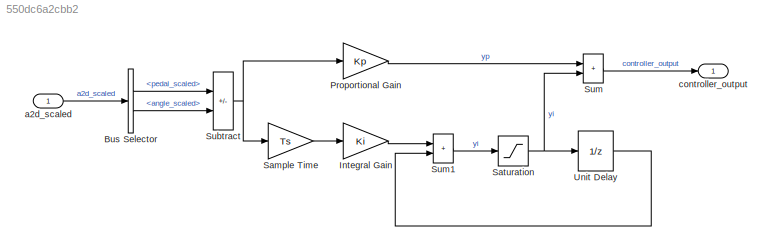
MODEL slx_550dc6a2cbb2
KIND model
CONFIG AbsTol = auto
CONFIG EnableMultiTasking = on
CONFIG FixedStep = Ts
CONFIG MaxStep = auto
CONFIG MinStep = auto
CONFIG RelTol = 1e-3
CONFIG SampleTimeConstraint = Unconstrained
CONFIG SolverName = FixedStepDiscrete
CONFIG StartTime = 0.0
CONFIG StopTime = 10.0
BLOCK [BusSelector] Bus Selector
  OutputSignals = pedal_scaled,angle_scaled
  Ports = [1, 2]
BLOCK [Gain] Integral Gain
  Gain = Ki
  OutDataTypeStr = Inherit: Same as input
  ParamDataTypeStr = Inherit: Same as input
  SaturateOnIntegerOverflow = on
BLOCK [Gain] Proportional Gain
  Gain = Kp
  OutDataTypeStr = Inherit: Same as input
  ParamDataTypeStr = Inherit: Same as input
  SaturateOnIntegerOverflow = on
BLOCK [Gain] Sample Time
  Gain = Ts
  OutDataTypeStr = Inherit: Same as input
  ParamDataTypeStr = Inherit: Same as input
  SaturateOnIntegerOverflow = on
BLOCK [Saturate] Saturation
  AttributesFormatString = Max: %<UpperLimit>\nMin: %<LowerLimit>
  LowerLimit = -1
  UpperLimit = 1
BLOCK [Sum] Subtract
  IconShape = rectangular
  Inputs = +-
  Ports = [2, 1]
BLOCK [Sum] Sum
  AttributesFormatString = Inputs are the\nsame data type?\n%<InputSameDT>
  IconShape = rectangular
  InputSameDT = on
  OutDataTypeStr = Inherit: Same as first input
  Ports = [2, 1]
  SaturateOnIntegerOverflow = on
BLOCK [Sum] Sum1
  AttributesFormatString = Inputs are the\nsame data type?\n%<InputSameDT>
  IconShape = rectangular
  InputSameDT = on
  OutDataTypeStr = Inherit: Same as first input
  Ports = [2, 1]
  SaturateOnIntegerOverflow = on
BLOCK [UnitDelay] Unit Delay
  AttributesFormatString = yi0 = %<X0>\nSample time = %<SampleTime>
  HasFrameUpgradeWarning = on
  SampleTime = Ts
BLOCK [Inport] a2d_scaled
  OutDataTypeStr = Bus: a2d_scaled_bus
  PortDimensions = 1
  SampleTime = Ts
BLOCK [Outport] controller_output
  OutDataTypeStr = double
  PortDimensions = 1
  SampleTime = Ts
  SamplingMode = Sample based
  SignalType = real
  VectorParamsAs1DForOutWhenUnconnected = off
LINE Bus Selector:1 -> Subtract:1
LINE Bus Selector:2 -> Subtract:2
LINE Integral Gain:1 -> Sum1:1
LINE Proportional Gain:1 -> Sum:1
LINE Sample Time:1 -> Integral Gain:1
NET Saturation:1 -> Sum:2, Unit Delay:1
NET Subtract:1 -> Proportional Gain:1, Sample Time:1
LINE Sum1:1 -> Saturation:1
LINE Sum:1 -> controller_output:1
LINE Unit Delay:1 -> Sum1:2
LINE a2d_scaled:1 -> Bus Selector:1
note: NET lines group one-source signal fan-out (src -> all destinations, sorted); 1:1 wires keep LINE
CHART Test Sequence (Assessment) states=3 transitions=10
  STATE_LABEL "Assessment\n\nassert(controller_output <= (1 + Kp), 'Upper bound exceeded.');\nassert(controller_output >= -(1 + Kp), 'Lower bound exceeded.');"
  STATE_LABEL "Windup\nverify(controller_output < (1 - Kp), ...\n    'Integrator windup detected at t = %f.',t);"
  STATE_LABEL 'Else'
  STATE_LABEL '[duration(steppingDown) >= Ts\n]'
  STATE_LABEL '[~in(Assessment.Windup)]'
  STATE_LABEL '[~in(Assessment.Else)]'
  STATE_LABEL "Windup\nverify(controller_output < (1 - Kp), ...\n    'Integrator windup detected at t = %f.',t);"
  STATE_LABEL 'Else'
CHART Test Sequence states=5 transitions=6
  STATE_LABEL 'Standby\na2d_scaled.pedal_scaled = 0;\na2d_scaled.angle_scaled = 0;\nsteppingDown = false;'
  STATE_LABEL 'TestCycle'
  STATE_LABEL 'StepUp\na2d_scaled.pedal_scaled = 1;'
  STATE_LABEL 'Wait'
  STATE_LABEL 'StepDown\na2d_scaled.pedal_scaled = -1;\nsteppingDown = true;'
  STATE_LABEL '[controller_output >= (1 + Kp)]'
  STATE_LABEL '[after(3,sec)]'
  STATE_LABEL 'StepUp\na2d_scaled.pedal_scaled = 1;'
  STATE_LABEL 'Wait'
  STATE_LABEL 'StepDown\na2d_scaled.pedal_scaled = -1;\nsteppingDown = true;'
